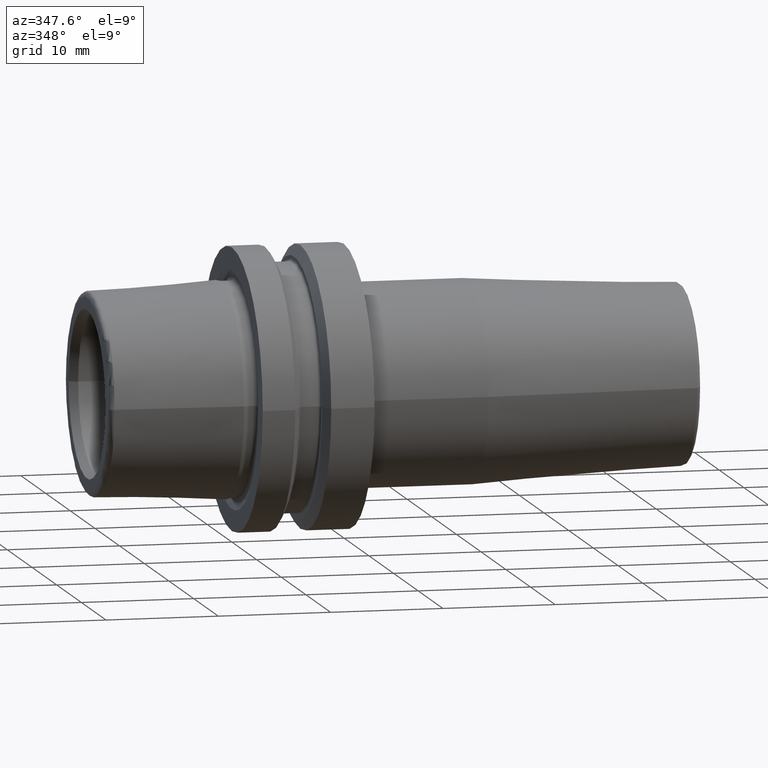
[diagram: clean part render]
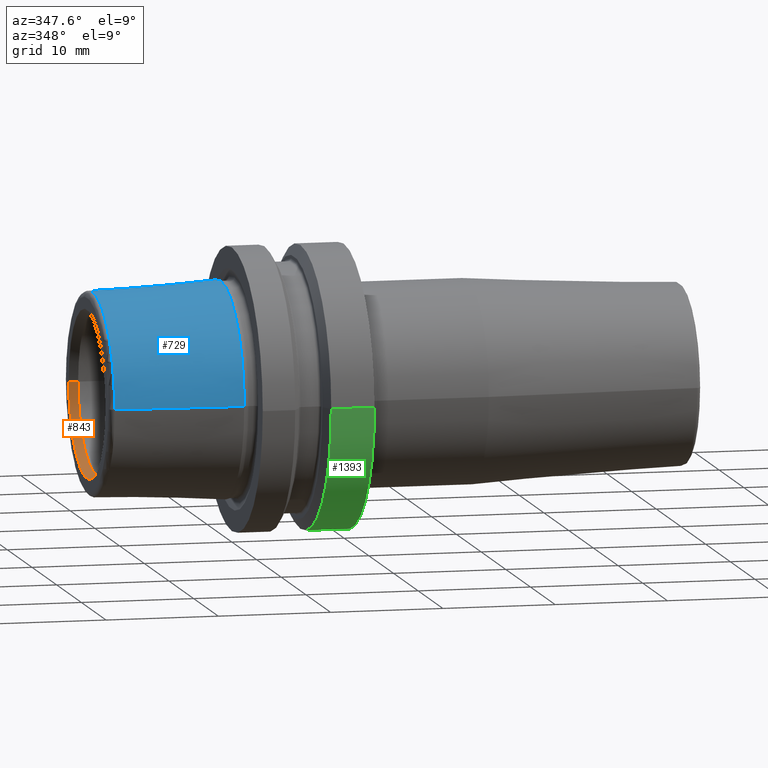
[diagram: same view with three faces highlighted in distinct colors, each labeled with its STEP entity id]
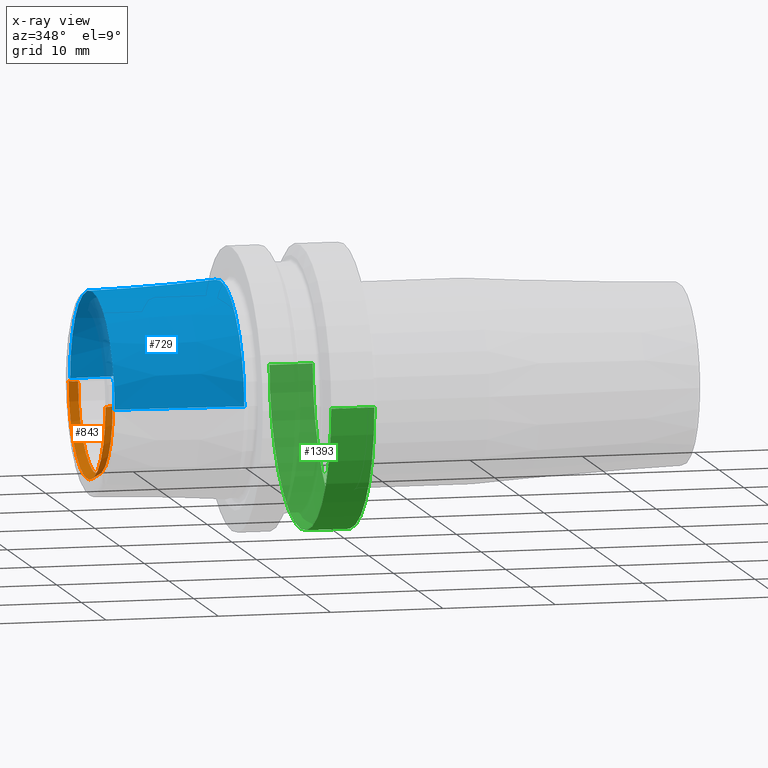
[diagram: x-ray of the same camera — body ghosted, the three highlighted faces saturated]
A machine part, auxiliary view with three faces highlighted in distinct colors.
The next image is the same camera in x-ray (body ghosted, the three faces saturated) — at least one of them is partly hidden behind the body in this view.
Their STEP definitions:

[orange] entity #843 — the highlighted conical surface has half-angle 30 deg.
#73=CARTESIAN_POINT('',(-1.29E1,0.E0,0.E0));
#74=DIRECTION('',(1.E0,0.E0,0.E0));
#75=DIRECTION('',(0.E0,-1.E0,0.E0));
#76=AXIS2_PLACEMENT_3D('',#73,#74,#75);
#83=DIRECTION('',(-8.660254037844E-1,5.E-1,0.E0));
#84=VECTOR('',#83,8.660254037844E-1);
#85=CARTESIAN_POINT('',(-1.215E1,7.0175E0,0.E0));
#86=LINE('',#85,#84);
#87=CARTESIAN_POINT('',(-1.215E1,0.E0,0.E0));
#88=DIRECTION('',(-1.E0,0.E0,0.E0));
#89=DIRECTION('',(0.E0,1.E0,0.E0));
#90=AXIS2_PLACEMENT_3D('',#87,#88,#89);
#92=DIRECTION('',(-8.660254037844E-1,-5.E-1,0.E0));
#93=VECTOR('',#92,8.660254037844E-1);
#94=CARTESIAN_POINT('',(-1.215E1,-7.0175E0,0.E0));
#95=LINE('',#94,#93);
#668=CARTESIAN_POINT('',(-1.215E1,7.0175E0,0.E0));
#669=VERTEX_POINT('',#668);
#680=CARTESIAN_POINT('',(-1.215E1,-7.0175E0,0.E0));
#681=VERTEX_POINT('',#680);
#682=CARTESIAN_POINT('',(-1.29E1,7.450512701892E0,0.E0));
#683=VERTEX_POINT('',#682);
#684=CARTESIAN_POINT('',(-1.29E1,-7.450512701892E0,0.E0));
#685=VERTEX_POINT('',#684);
#831=CARTESIAN_POINT('',(-1.2525E1,0.E0,0.E0));
#832=DIRECTION('',(-1.E0,0.E0,0.E0));
#833=DIRECTION('',(0.E0,1.E0,0.E0));
#834=AXIS2_PLACEMENT_3D('',#831,#832,#833);
#835=CONICAL_SURFACE('',#834,7.234006350946E0,3.E1);
#836=ORIENTED_EDGE('',*,*,#821,.F.);
#838=ORIENTED_EDGE('',*,*,#837,.T.);
#839=ORIENTED_EDGE('',*,*,#824,.T.);
#840=ORIENTED_EDGE('',*,*,#811,.T.);
#841=EDGE_LOOP('',(#836,#838,#839,#840));
#842=FACE_OUTER_BOUND('',#841,.F.);
#843=ADVANCED_FACE('',(#842),#835,.F.);
#77=CIRCLE('',#76,7.450512701892E0);
#91=CIRCLE('',#90,7.0175E0);
#811=EDGE_CURVE('',#685,#683,#77,.T.);
#821=EDGE_CURVE('',#669,#683,#86,.T.);
#824=EDGE_CURVE('',#681,#685,#95,.T.);
#837=EDGE_CURVE('',#669,#681,#91,.T.);

[blue] entity #729 — the highlighted conical surface has half-angle 2.845 deg.
#2=CARTESIAN_POINT('',(-1.E0,0.E0,0.E0));
#3=DIRECTION('',(1.E0,0.E0,0.E0));
#4=DIRECTION('',(0.E0,1.E0,0.E0));
#5=AXIS2_PLACEMENT_3D('',#2,#3,#4);
#30=DIRECTION('',(-9.987676191710E-1,-4.963106784496E-2,0.E0));
#31=VECTOR('',#30,1.143891263055E1);
#32=CARTESIAN_POINT('',(-1.E0,9.577538461538E0,0.E0));
#33=LINE('',#32,#31);
#34=DIRECTION('',(-9.987676191710E-1,4.963106784496E-2,0.E0));
#35=VECTOR('',#34,1.143891263055E1);
#36=CARTESIAN_POINT('',(-1.E0,-9.577538461538E0,0.E0));
#37=LINE('',#36,#35);
#53=CARTESIAN_POINT('',(-1.242481553392E1,0.E0,0.E0));
#54=DIRECTION('',(1.E0,0.E0,0.E0));
#55=DIRECTION('',(0.E0,1.E0,0.E0));
#56=AXIS2_PLACEMENT_3D('',#53,#54,#55);
#594=CARTESIAN_POINT('',(-1.E0,9.577538461538E0,0.E0));
#595=CARTESIAN_POINT('',(-1.E0,-9.577538461538E0,0.E0));
#596=VERTEX_POINT('',#594);
#597=VERTEX_POINT('',#595);
#598=CARTESIAN_POINT('',(-1.242481553392E1,9.009813012699E0,0.E0));
#599=VERTEX_POINT('',#598);
#600=CARTESIAN_POINT('',(-1.242481553392E1,-9.009813012699E0,0.E0));
#601=VERTEX_POINT('',#600);
#714=CARTESIAN_POINT('',(-6.712407766961E0,0.E0,0.E0));
#715=DIRECTION('',(1.E0,0.E0,0.E0));
#716=DIRECTION('',(0.E0,-1.E0,0.E0));
#717=AXIS2_PLACEMENT_3D('',#714,#715,#716);
#718=CONICAL_SURFACE('',#717,9.293675737119E0,2.844819449936E0);
#720=ORIENTED_EDGE('',*,*,#719,.T.);
#722=ORIENTED_EDGE('',*,*,#721,.T.);
#724=ORIENTED_EDGE('',*,*,#723,.F.);
#726=ORIENTED_EDGE('',*,*,#725,.F.);
#727=EDGE_LOOP('',(#720,#722,#724,#726));
#728=FACE_OUTER_BOUND('',#727,.F.);
#729=ADVANCED_FACE('',(#728),#718,.T.);
#6=CIRCLE('',#5,9.577538461538E0);
#57=CIRCLE('',#56,9.009813012699E0);
#719=EDGE_CURVE('',#596,#597,#6,.T.);
#721=EDGE_CURVE('',#597,#601,#37,.T.);
#723=EDGE_CURVE('',#599,#601,#57,.T.);
#725=EDGE_CURVE('',#596,#599,#33,.T.);

[green] entity #1393 — the highlighted cylindrical surface (partial cylindrical patch) has radius 12.5 mm, axis along (1, 0, 0).
#433=CARTESIAN_POINT('',(6.102146997001E0,0.E0,0.E0));
#434=DIRECTION('',(1.E0,0.E0,0.E0));
#435=DIRECTION('',(0.E0,-1.E0,0.E0));
#436=AXIS2_PLACEMENT_3D('',#433,#434,#435);
#438=DIRECTION('',(-1.E0,0.E0,0.E0));
#439=VECTOR('',#438,3.847853002999E0);
#440=CARTESIAN_POINT('',(9.95E0,-1.25E1,0.E0));
#441=LINE('',#440,#439);
#442=CARTESIAN_POINT('',(9.95E0,0.E0,0.E0));
#443=DIRECTION('',(-1.E0,0.E0,0.E0));
#444=DIRECTION('',(0.E0,1.E0,0.E0));
#445=AXIS2_PLACEMENT_3D('',#442,#443,#444);
#447=DIRECTION('',(-1.E0,0.E0,0.E0));
#448=VECTOR('',#447,3.847853002999E0);
#449=CARTESIAN_POINT('',(9.95E0,1.25E1,0.E0));
#450=LINE('',#449,#448);
#642=CARTESIAN_POINT('',(6.102146997001E0,1.25E1,0.E0));
#643=VERTEX_POINT('',#642);
#646=CARTESIAN_POINT('',(6.102146997001E0,-1.25E1,0.E0));
#647=VERTEX_POINT('',#646);
#650=CARTESIAN_POINT('',(9.95E0,1.25E1,0.E0));
#651=CARTESIAN_POINT('',(9.95E0,-1.25E1,0.E0));
#652=VERTEX_POINT('',#650);
#653=VERTEX_POINT('',#651);
#1381=CARTESIAN_POINT('',(-1.40425E1,0.E0,0.E0));
#1382=DIRECTION('',(1.E0,0.E0,0.E0));
#1383=DIRECTION('',(0.E0,-1.E0,0.E0));
#1384=AXIS2_PLACEMENT_3D('',#1381,#1382,#1383);
#1385=CYLINDRICAL_SURFACE('',#1384,1.25E1);
#1386=ORIENTED_EDGE('',*,*,#1233,.F.);
#1387=ORIENTED_EDGE('',*,*,#1189,.F.);
#1389=ORIENTED_EDGE('',*,*,#1388,.F.);
#1390=ORIENTED_EDGE('',*,*,#1185,.T.);
#1391=EDGE_LOOP('',(#1386,#1387,#1389,#1390));
#1392=FACE_OUTER_BOUND('',#1391,.F.);
#1393=ADVANCED_FACE('',(#1392),#1385,.T.);
#437=CIRCLE('',#436,1.25E1);
#446=CIRCLE('',#445,1.25E1);
#1185=EDGE_CURVE('',#652,#643,#450,.T.);
#1189=EDGE_CURVE('',#653,#647,#441,.T.);
#1233=EDGE_CURVE('',#647,#643,#437,.T.);
#1388=EDGE_CURVE('',#652,#653,#446,.T.);